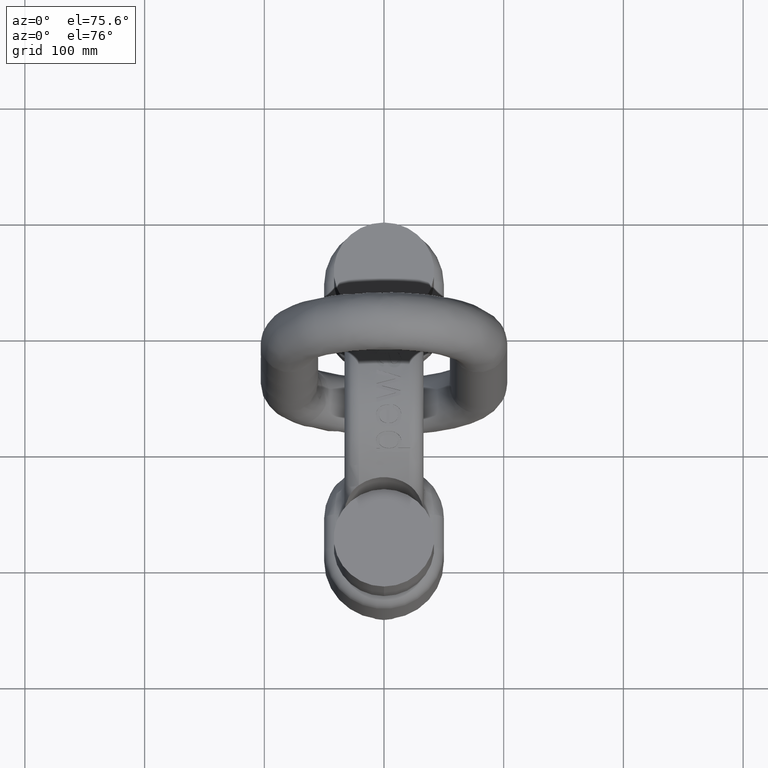
[diagram: clean part render]
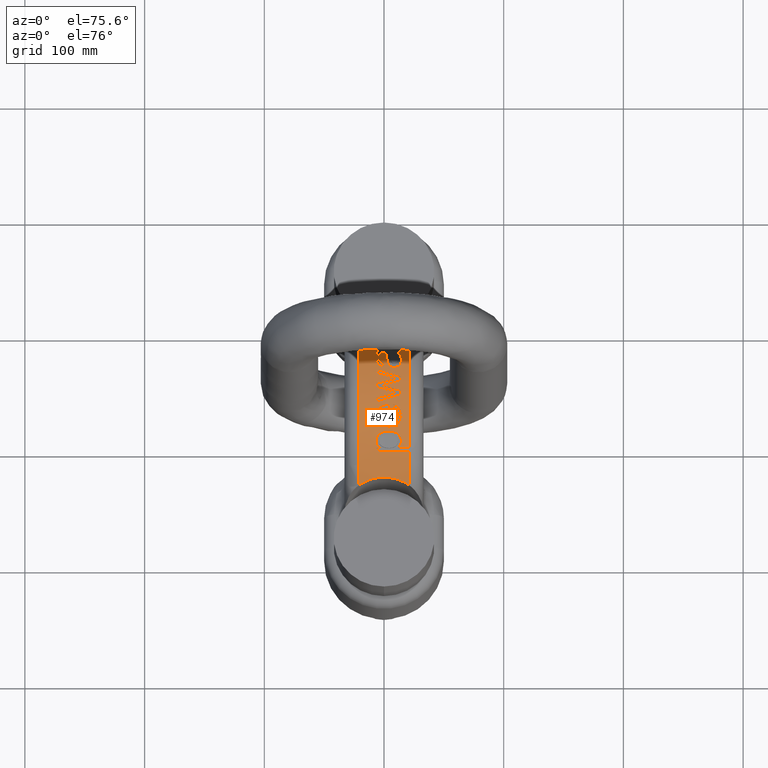
[diagram: same view with one face highlighted and labeled with its STEP entity id]
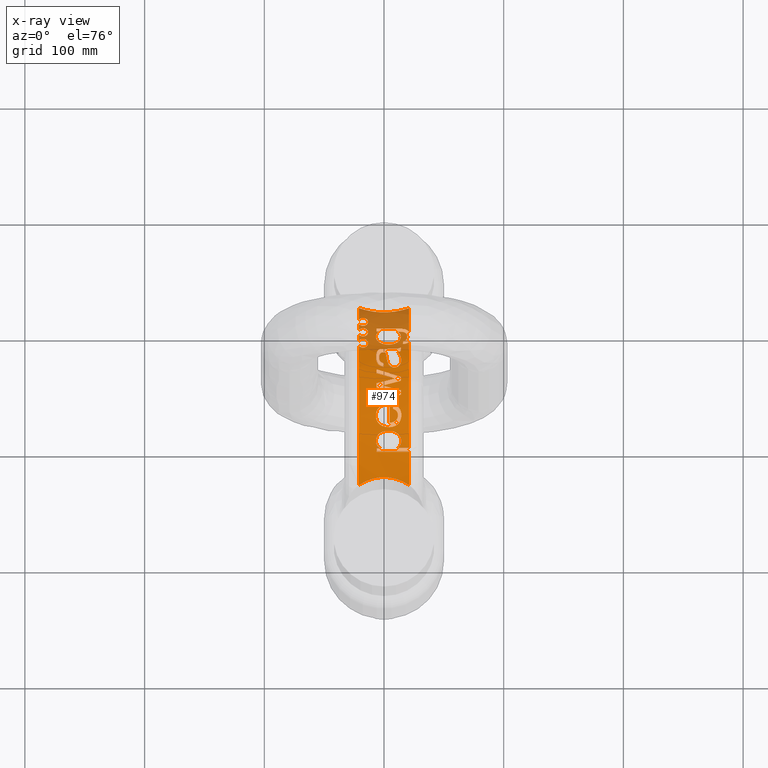
[diagram: x-ray of the same camera — body ghosted, the highlighted face saturated]
A machine part, auxiliary view. The second image highlights one B-rep face of the part: STEP entity #974.
The next image is the same camera in x-ray: the body ghosted, the highlighted face saturated — about 21% of this face is hidden behind the body in this view.
In plain terms, the highlighted cylindrical surface (partial cylindrical patch) has radius 96 mm, axis along (-1, 0, 0).
Its self-contained STEP definition (entity closure, byte-faithful):
#974=ADVANCED_FACE('',(#1175,#1176,#1177,#1178),#1141,.T.);
#1141=CYLINDRICAL_SURFACE('',#3538,96.);
#1175=FACE_BOUND('',#1225,.T.);
#1176=FACE_BOUND('',#1226,.T.);
#1177=FACE_BOUND('',#1227,.T.);
#1178=FACE_BOUND('',#1228,.T.);
#1225=EDGE_LOOP('',(#1947,#1948,#1949,#1950,#1951,#1952,#1953,#1954,#1955,
#1956,#1957,#1958,#1959,#1960,#1961,#1962,#1963,#1964,#1965,#1966,#1967));
#1226=EDGE_LOOP('',(#1968,#1969,#1970,#1971,#1972,#1973,#1974,#1975,#1976,
#1977,#1978,#1979,#1980,#1981,#1982,#1983,#1984));
#1227=EDGE_LOOP('',(#1985,#1986,#1987,#1988,#1989,#1990,#1991,#1992,#1993));
#1228=EDGE_LOOP('',(#1994,#1995,#1996,#1997,#1998,#1999,#2000,#2001,#2002,
#2003,#2004,#2005,#2006,#2007,#2008,#2009,#2010,#2011,#2012,#2013,#2014,
#2015,#2016,#2017,#2018,#2019,#2020,#2021,#2022,#2023,#2024,#2025,#2026));
#1418=B_SPLINE_CURVE_WITH_KNOTS('',3,(#4279,#4280,#4281,#4282,#4283,#4284,
#4285,#4286,#4287,#4288,#4289,#4290,#4291,#4292,#4293,#4294,#4295,#4296,
#4297,#4298,#4299,#4300,#4301,#4302,#4303,#4304,#4305,#4306,#4307,#4308,
#4309,#4310,#4311,#4312,#4313,#4314,#4315,#4316,#4317,#4318,#4319,#4320,
#4321,#4322,#4323,#4324,#4325,#4326,#4327,#4328,#4329,#4330,#4331,#4332,
#4333,#4334,#4335,#4336,#4337,#4338,#4339,#4340,#4341,#4342),
 .UNSPECIFIED.,.F.,.F.,(4,3,3,3,3,3,3,3,3,3,3,3,3,3,3,3,3,3,3,3,3,4),(0.,
0.49955328851525,0.749371434741825,0.834029603282392,0.889946039312453,
0.926899860751098,0.951339384236132,0.967517535161966,0.978239931005464,
0.985357874383704,0.990093298872511,0.993252983556462,0.995369787194922,
0.996795771266552,0.997763606356575,0.998427267015946,0.998888978609968,
0.999371388738576,0.999590041664046,0.999773234990563,0.999908557810776,
1.),.UNSPECIFIED.);
#1419=B_SPLINE_CURVE_WITH_KNOTS('',3,(#4344,#4345,#4346,#4347,#4348,#4349,
#4350,#4351,#4352,#4353),.UNSPECIFIED.,.F.,.F.,(4,3,3,4),(0.,0.133710790940083,
0.662259457839558,1.),.UNSPECIFIED.);
#1420=B_SPLINE_CURVE_WITH_KNOTS('',3,(#4377,#4378,#4379,#4380,#4381,#4382,
#4383,#4384,#4385,#4386),.UNSPECIFIED.,.F.,.F.,(4,3,3,4),(0.,0.284444146730759,
0.642217511375723,1.),.UNSPECIFIED.);
#1421=B_SPLINE_CURVE_WITH_KNOTS('',3,(#4390,#4391,#4392,#4393,#4394,#4395,
#4396,#4397,#4398,#4399),.UNSPECIFIED.,.F.,.F.,(4,3,3,4),(0.,0.297982429070866,
0.59621051939344,1.),.UNSPECIFIED.);
#1422=B_SPLINE_CURVE_WITH_KNOTS('',3,(#4401,#4402,#4403,#4404,#4405,#4406,
#4407,#4408,#4409,#4410,#4411,#4412,#4413,#4414,#4415,#4416),
 .UNSPECIFIED.,.F.,.F.,(4,2,2,2,2,2,2,4),(0.,0.125,0.25,0.375,0.5,0.625,
0.749999999999999,1.),.UNSPECIFIED.);
#1423=B_SPLINE_CURVE_WITH_KNOTS('',3,(#4418,#4419,#4420,#4421,#4422,#4423),
 .UNSPECIFIED.,.F.,.F.,(4,2,4),(0.,0.5,1.),.UNSPECIFIED.);
#1424=B_SPLINE_CURVE_WITH_KNOTS('',3,(#4427,#4428,#4429,#4430,#4431,#4432,
#4433,#4434,#4435,#4436),.UNSPECIFIED.,.F.,.F.,(4,3,3,4),(0.,0.295832067730282,
0.591478766816927,1.),.UNSPECIFIED.);
#1425=B_SPLINE_CURVE_WITH_KNOTS('',3,(#4438,#4439,#4440,#4441,#4442,#4443,
#4444,#4445,#4446,#4447),.UNSPECIFIED.,.F.,.F.,(4,3,3,4),(0.,0.354196956395695,
0.676989152019512,1.),.UNSPECIFIED.);
#1426=B_SPLINE_CURVE_WITH_KNOTS('',3,(#4449,#4450,#4451,#4452,#4453,#4454,
#4455,#4456,#4457,#4458),.UNSPECIFIED.,.F.,.F.,(4,3,3,4),(0.,0.283875189649946,
0.568062773987668,1.),.UNSPECIFIED.);
#1427=B_SPLINE_CURVE_WITH_KNOTS('',3,(#4460,#4461,#4462,#4463,#4464,#4465,
#4466,#4467,#4468,#4469),.UNSPECIFIED.,.F.,.F.,(4,3,3,4),(0.,0.294262907408577,
0.58920161461795,1.),.UNSPECIFIED.);
#1428=B_SPLINE_CURVE_WITH_KNOTS('',3,(#4471,#4472,#4473,#4474,#4475,#4476),
 .UNSPECIFIED.,.F.,.F.,(4,2,4),(0.,0.5,1.),.UNSPECIFIED.);
#1429=B_SPLINE_CURVE_WITH_KNOTS('',3,(#4478,#4479,#4480,#4481),
 .UNSPECIFIED.,.F.,.F.,(4,4),(0.,1.),.UNSPECIFIED.);
#1430=B_SPLINE_CURVE_WITH_KNOTS('',3,(#4485,#4486,#4487,#4488),
 .UNSPECIFIED.,.F.,.F.,(4,4),(0.,1.),.UNSPECIFIED.);
#1431=B_SPLINE_CURVE_WITH_KNOTS('',3,(#4490,#4491,#4492,#4493,#4494,#4495,
#4496,#4497),.UNSPECIFIED.,.F.,.F.,(4,2,2,4),(0.,0.25,0.500000000000001,
1.),.UNSPECIFIED.);
#1432=B_SPLINE_CURVE_WITH_KNOTS('',3,(#4499,#4500,#4501,#4502,#4503,#4504,
#4505,#4506,#4507,#4508),.UNSPECIFIED.,.F.,.F.,(4,3,3,4),(0.,0.261924304348982,
0.65301878983546,1.),.UNSPECIFIED.);
#1433=B_SPLINE_CURVE_WITH_KNOTS('',3,(#4510,#4511,#4512,#4513,#4514,#4515,
#4516,#4517,#4518,#4519),.UNSPECIFIED.,.F.,.F.,(4,2,2,2,4),(0.,0.25,0.5,
0.75,1.),.UNSPECIFIED.);
#1434=B_SPLINE_CURVE_WITH_KNOTS('',3,(#4521,#4522,#4523,#4524,#4525,#4526,
#4527,#4528,#4529,#4530),.UNSPECIFIED.,.F.,.F.,(4,3,3,4),(0.,0.264424805711655,
0.528979257554789,1.),.UNSPECIFIED.);
#1435=B_SPLINE_CURVE_WITH_KNOTS('',3,(#4534,#4535,#4536,#4537),
 .UNSPECIFIED.,.F.,.F.,(4,4),(0.,1.),.UNSPECIFIED.);
#1436=B_SPLINE_CURVE_WITH_KNOTS('',3,(#4539,#4540,#4541,#4542,#4543,#4544),
 .UNSPECIFIED.,.F.,.F.,(4,2,4),(0.,0.5,1.),.UNSPECIFIED.);
#1437=B_SPLINE_CURVE_WITH_KNOTS('',3,(#4546,#4547,#4548,#4549,#4550,#4551,
#4552,#4553,#4554,#4555),.UNSPECIFIED.,.F.,.F.,(4,3,3,4),(0.,0.291869155071851,
0.58440440214074,1.),.UNSPECIFIED.);
#1438=B_SPLINE_CURVE_WITH_KNOTS('',3,(#4559,#4560,#4561,#4562),
 .UNSPECIFIED.,.F.,.F.,(4,4),(0.,1.),.UNSPECIFIED.);
#1439=B_SPLINE_CURVE_WITH_KNOTS('',3,(#4564,#4565,#4566,#4567,#4568,#4569),
 .UNSPECIFIED.,.F.,.F.,(4,2,4),(0.,0.5,1.),.UNSPECIFIED.);
#1440=B_SPLINE_CURVE_WITH_KNOTS('',3,(#4571,#4572,#4573,#4574,#4575,#4576,
#4577,#4578,#4579,#4580,#4581,#4582,#4583,#4584,#4585,#4586,#4587,#4588),
 .UNSPECIFIED.,.F.,.F.,(4,2,2,2,2,2,2,2,4),(0.,0.125,0.25,0.375,0.5,0.625,
0.75,0.875,1.),.UNSPECIFIED.);
#1441=B_SPLINE_CURVE_WITH_KNOTS('',3,(#4590,#4591,#4592,#4593,#4594,#4595),
 .UNSPECIFIED.,.F.,.F.,(4,2,4),(0.,0.5,1.),.UNSPECIFIED.);
#1442=B_SPLINE_CURVE_WITH_KNOTS('',3,(#4605,#4606,#4607,#4608,#4609,#4610),
 .UNSPECIFIED.,.F.,.F.,(4,2,4),(0.,0.5,1.),.UNSPECIFIED.);
#1443=B_SPLINE_CURVE_WITH_KNOTS('',3,(#4612,#4613,#4614,#4615,#4616,#4617),
 .UNSPECIFIED.,.F.,.F.,(4,2,4),(0.,0.5,1.),.UNSPECIFIED.);
#1444=B_SPLINE_CURVE_WITH_KNOTS('',3,(#4619,#4620,#4621,#4622,#4623,#4624,
#4625,#4626,#4627,#4628,#4629,#4630),.UNSPECIFIED.,.F.,.F.,(4,2,2,2,2,4),
(0.,0.125,0.25,0.5,0.75,1.),.UNSPECIFIED.);
#1445=B_SPLINE_CURVE_WITH_KNOTS('',3,(#4638,#4639,#4640,#4641),
 .UNSPECIFIED.,.F.,.F.,(4,4),(0.,1.),.UNSPECIFIED.);
#1446=B_SPLINE_CURVE_WITH_KNOTS('',3,(#4643,#4644,#4645,#4646,#4647,#4648),
 .UNSPECIFIED.,.F.,.F.,(4,2,4),(0.,0.5,1.),.UNSPECIFIED.);
#1447=B_SPLINE_CURVE_WITH_KNOTS('',3,(#4652,#4653,#4654,#4655,#4656,#4657,
#4658,#4659,#4660,#4661),.UNSPECIFIED.,.F.,.F.,(4,3,3,4),(0.,0.263976760139293,
0.62374053692487,1.),.UNSPECIFIED.);
#1448=B_SPLINE_CURVE_WITH_KNOTS('',3,(#4663,#4664,#4665,#4666,#4667,#4668),
 .UNSPECIFIED.,.F.,.F.,(4,2,4),(0.,0.5,1.),.UNSPECIFIED.);
#1449=B_SPLINE_CURVE_WITH_KNOTS('',3,(#4670,#4671,#4672,#4673,#4674,#4675,
#4676,#4677),.UNSPECIFIED.,.F.,.F.,(4,2,2,4),(0.,0.5,0.75,1.),
 .UNSPECIFIED.);
#1450=B_SPLINE_CURVE_WITH_KNOTS('',3,(#4679,#4680,#4681,#4682,#4683,#4684,
#4685,#4686,#4687,#4688,#4689,#4690,#4691,#4692,#4693,#4694,#4695,#4696),
 .UNSPECIFIED.,.F.,.F.,(4,2,2,2,2,2,2,2,4),(0.,0.125,0.25,0.375,0.5,0.625,
0.75,0.875,1.),.UNSPECIFIED.);
#1451=B_SPLINE_CURVE_WITH_KNOTS('',3,(#4704,#4705,#4706,#4707,#4708,#4709,
#4710,#4711,#4712,#4713),.UNSPECIFIED.,.F.,.F.,(4,2,2,2,4),(0.,0.125,0.25,
0.5,1.),.UNSPECIFIED.);
#1452=B_SPLINE_CURVE_WITH_KNOTS('',3,(#4715,#4716,#4717,#4718),
 .UNSPECIFIED.,.F.,.F.,(4,4),(0.,1.),.UNSPECIFIED.);
#1453=B_SPLINE_CURVE_WITH_KNOTS('',3,(#4722,#4723,#4724,#4725,#4726,#4727,
#4728,#4729,#4730,#4731),.UNSPECIFIED.,.F.,.F.,(4,2,2,2,4),(0.,0.25,0.5,
0.75,1.),.UNSPECIFIED.);
#1454=B_SPLINE_CURVE_WITH_KNOTS('',3,(#4735,#4736,#4737,#4738,#4739,#4740,
#4741,#4742,#4743,#4744,#4745,#4746,#4747,#4748,#4749,#4750,#4751,#4752),
 .UNSPECIFIED.,.F.,.F.,(4,2,2,2,2,2,2,2,4),(0.,0.125,0.25,0.374999999999999,
0.499999999999999,0.625,0.75,0.875,1.),.UNSPECIFIED.);
#1455=B_SPLINE_CURVE_WITH_KNOTS('',3,(#4756,#4757,#4758,#4759,#4760,#4761,
#4762,#4763,#4764,#4765,#4766,#4767,#4768,#4769,#4770,#4771,#4772,#4773),
 .UNSPECIFIED.,.F.,.F.,(4,2,2,2,2,2,2,2,4),(0.,0.125,0.250000000000001,
0.375,0.5,0.625,0.75,0.875,1.),.UNSPECIFIED.);
#1456=B_SPLINE_CURVE_WITH_KNOTS('',3,(#4777,#4778,#4779,#4780,#4781,#4782,
#4783,#4784,#4785,#4786,#4787,#4788,#4789,#4790,#4791,#4792),
 .UNSPECIFIED.,.F.,.F.,(4,2,2,2,2,2,2,4),(0.,0.125,0.25,0.499999999999999,
0.624999999999999,0.75,0.875,1.),.UNSPECIFIED.);
#1457=B_SPLINE_CURVE_WITH_KNOTS('',3,(#4796,#4797,#4798,#4799,#4800,#4801,
#4802,#4803,#4804,#4805),.UNSPECIFIED.,.F.,.F.,(4,2,2,2,4),(0.,0.25,0.5,
0.75,1.),.UNSPECIFIED.);
#1645=LINE('',#4271,#1763);
#1646=LINE('',#4363,#1764);
#1647=LINE('',#4596,#1765);
#1648=LINE('',#4601,#1766);
#1649=LINE('',#4634,#1767);
#1650=LINE('',#4700,#1768);
#1763=VECTOR('',#3710,1.);
#1764=VECTOR('',#3725,1.);
#1765=VECTOR('',#3748,1.);
#1766=VECTOR('',#3751,1.);
#1767=VECTOR('',#3756,1.);
#1768=VECTOR('',#3763,1.);
#1926=ELLIPSE('',#3505,334.165772976674,96.);
#1927=ELLIPSE('',#3507,315.534645239826,96.);
#1928=ELLIPSE('',#3509,370.462693074471,96.);
#1929=ELLIPSE('',#3511,377.406551133111,96.);
#1930=ELLIPSE('',#3513,321.801172778233,96.);
#1931=ELLIPSE('',#3515,356.263238718433,96.);
#1932=ELLIPSE('',#3516,387.50784241534,96.);
#1933=ELLIPSE('',#3517,360.821529230002,96.);
#1934=ELLIPSE('',#3519,379.34151670595,96.);
#1935=ELLIPSE('',#3521,97.1065626048903,96.);
#1936=ELLIPSE('',#3522,96.8381091184336,96.);
#1937=ELLIPSE('',#3524,96.7593361660308,96.);
#1938=ELLIPSE('',#3529,97.4187111960013,96.);
#1947=ORIENTED_EDGE('',*,*,#3020,.F.);
#1948=ORIENTED_EDGE('',*,*,#3021,.F.);
#1949=ORIENTED_EDGE('',*,*,#3022,.F.);
#1950=ORIENTED_EDGE('',*,*,#3023,.T.);
#1951=ORIENTED_EDGE('',*,*,#3024,.F.);
#1952=ORIENTED_EDGE('',*,*,#3025,.F.);
#1953=ORIENTED_EDGE('',*,*,#3026,.F.);
#1954=ORIENTED_EDGE('',*,*,#3027,.F.);
#1955=ORIENTED_EDGE('',*,*,#3028,.F.);
#1956=ORIENTED_EDGE('',*,*,#3029,.F.);
#1957=ORIENTED_EDGE('',*,*,#3030,.F.);
#1958=ORIENTED_EDGE('',*,*,#3031,.F.);
#1959=ORIENTED_EDGE('',*,*,#3032,.F.);
#1960=ORIENTED_EDGE('',*,*,#3033,.T.);
#1961=ORIENTED_EDGE('',*,*,#3034,.F.);
#1962=ORIENTED_EDGE('',*,*,#3035,.F.);
#1963=ORIENTED_EDGE('',*,*,#3036,.F.);
#1964=ORIENTED_EDGE('',*,*,#3037,.F.);
#1965=ORIENTED_EDGE('',*,*,#3038,.F.);
#1966=ORIENTED_EDGE('',*,*,#3039,.F.);
#1967=ORIENTED_EDGE('',*,*,#3040,.F.);
#1968=ORIENTED_EDGE('',*,*,#3041,.F.);
#1969=ORIENTED_EDGE('',*,*,#3042,.F.);
#1970=ORIENTED_EDGE('',*,*,#3043,.F.);
#1971=ORIENTED_EDGE('',*,*,#3044,.F.);
#1972=ORIENTED_EDGE('',*,*,#3045,.F.);
#1973=ORIENTED_EDGE('',*,*,#3046,.F.);
#1974=ORIENTED_EDGE('',*,*,#3047,.F.);
#1975=ORIENTED_EDGE('',*,*,#3048,.F.);
#1976=ORIENTED_EDGE('',*,*,#3049,.F.);
#1977=ORIENTED_EDGE('',*,*,#3050,.F.);
#1978=ORIENTED_EDGE('',*,*,#3051,.F.);
#1979=ORIENTED_EDGE('',*,*,#3052,.F.);
#1980=ORIENTED_EDGE('',*,*,#3053,.F.);
#1981=ORIENTED_EDGE('',*,*,#3054,.F.);
#1982=ORIENTED_EDGE('',*,*,#3055,.F.);
#1983=ORIENTED_EDGE('',*,*,#3056,.F.);
#1984=ORIENTED_EDGE('',*,*,#3057,.F.);
#1985=ORIENTED_EDGE('',*,*,#3058,.F.);
#1986=ORIENTED_EDGE('',*,*,#3059,.F.);
#1987=ORIENTED_EDGE('',*,*,#3060,.F.);
#1988=ORIENTED_EDGE('',*,*,#3061,.F.);
#1989=ORIENTED_EDGE('',*,*,#3062,.F.);
#1990=ORIENTED_EDGE('',*,*,#3063,.F.);
#1991=ORIENTED_EDGE('',*,*,#3064,.F.);
#1992=ORIENTED_EDGE('',*,*,#3065,.F.);
#1993=ORIENTED_EDGE('',*,*,#3066,.F.);
#1994=ORIENTED_EDGE('',*,*,#3067,.F.);
#1995=ORIENTED_EDGE('',*,*,#3068,.F.);
#1996=ORIENTED_EDGE('',*,*,#3069,.F.);
#1997=ORIENTED_EDGE('',*,*,#3070,.F.);
#1998=ORIENTED_EDGE('',*,*,#3071,.F.);
#1999=ORIENTED_EDGE('',*,*,#3072,.F.);
#2000=ORIENTED_EDGE('',*,*,#3073,.F.);
#2001=ORIENTED_EDGE('',*,*,#3074,.F.);
#2002=ORIENTED_EDGE('',*,*,#3075,.F.);
#2003=ORIENTED_EDGE('',*,*,#3076,.T.);
#2004=ORIENTED_EDGE('',*,*,#3077,.F.);
#2005=ORIENTED_EDGE('',*,*,#3078,.F.);
#2006=ORIENTED_EDGE('',*,*,#3079,.F.);
#2007=ORIENTED_EDGE('',*,*,#3080,.F.);
#2008=ORIENTED_EDGE('',*,*,#3081,.F.);
#2009=ORIENTED_EDGE('',*,*,#3082,.F.);
#2010=ORIENTED_EDGE('',*,*,#3083,.F.);
#2011=ORIENTED_EDGE('',*,*,#3084,.F.);
#2012=ORIENTED_EDGE('',*,*,#3085,.F.);
#2013=ORIENTED_EDGE('',*,*,#3086,.F.);
#2014=ORIENTED_EDGE('',*,*,#3087,.F.);
#2015=ORIENTED_EDGE('',*,*,#3088,.F.);
#2016=ORIENTED_EDGE('',*,*,#3089,.T.);
#2017=ORIENTED_EDGE('',*,*,#3090,.F.);
#2018=ORIENTED_EDGE('',*,*,#3091,.T.);
#2019=ORIENTED_EDGE('',*,*,#3092,.T.);
#2020=ORIENTED_EDGE('',*,*,#3093,.T.);
#2021=ORIENTED_EDGE('',*,*,#3094,.T.);
#2022=ORIENTED_EDGE('',*,*,#3095,.T.);
#2023=ORIENTED_EDGE('',*,*,#3096,.T.);
#2024=ORIENTED_EDGE('',*,*,#3097,.T.);
#2025=ORIENTED_EDGE('',*,*,#3098,.T.);
#2026=ORIENTED_EDGE('',*,*,#3099,.T.);
#2755=VERTEX_POINT('',#4265);
#2756=VERTEX_POINT('',#4266);
#2757=VERTEX_POINT('',#4268);
#2758=VERTEX_POINT('',#4270);
#2759=VERTEX_POINT('',#4272);
#2760=VERTEX_POINT('',#4274);
#2761=VERTEX_POINT('',#4276);
#2762=VERTEX_POINT('',#4278);
#2763=VERTEX_POINT('',#4343);
#2764=VERTEX_POINT('',#4354);
#2765=VERTEX_POINT('',#4356);
#2766=VERTEX_POINT('',#4358);
#2767=VERTEX_POINT('',#4360);
#2768=VERTEX_POINT('',#4362);
#2769=VERTEX_POINT('',#4364);
#2770=VERTEX_POINT('',#4366);
#2771=VERTEX_POINT('',#4368);
#2772=VERTEX_POINT('',#4370);
#2773=VERTEX_POINT('',#4372);
#2774=VERTEX_POINT('',#4374);
#2775=VERTEX_POINT('',#4376);
#2776=VERTEX_POINT('',#4388);
#2777=VERTEX_POINT('',#4389);
#2778=VERTEX_POINT('',#4400);
#2779=VERTEX_POINT('',#4417);
#2780=VERTEX_POINT('',#4424);
#2781=VERTEX_POINT('',#4426);
#2782=VERTEX_POINT('',#4437);
#2783=VERTEX_POINT('',#4448);
#2784=VERTEX_POINT('',#4459);
#2785=VERTEX_POINT('',#4470);
#2786=VERTEX_POINT('',#4477);
#2787=VERTEX_POINT('',#4482);
#2788=VERTEX_POINT('',#4484);
#2789=VERTEX_POINT('',#4489);
#2790=VERTEX_POINT('',#4498);
#2791=VERTEX_POINT('',#4509);
#2792=VERTEX_POINT('',#4520);
#2793=VERTEX_POINT('',#4532);
#2794=VERTEX_POINT('',#4533);
#2795=VERTEX_POINT('',#4538);
#2796=VERTEX_POINT('',#4545);
#2797=VERTEX_POINT('',#4556);
#2798=VERTEX_POINT('',#4558);
#2799=VERTEX_POINT('',#4563);
#2800=VERTEX_POINT('',#4570);
#2801=VERTEX_POINT('',#4589);
#2802=VERTEX_POINT('',#4597);
#2803=VERTEX_POINT('',#4598);
#2804=VERTEX_POINT('',#4600);
#2805=VERTEX_POINT('',#4602);
#2806=VERTEX_POINT('',#4604);
#2807=VERTEX_POINT('',#4611);
#2808=VERTEX_POINT('',#4618);
#2809=VERTEX_POINT('',#4631);
#2810=VERTEX_POINT('',#4633);
#2811=VERTEX_POINT('',#4635);
#2812=VERTEX_POINT('',#4637);
#2813=VERTEX_POINT('',#4642);
#2814=VERTEX_POINT('',#4649);
#2815=VERTEX_POINT('',#4651);
#2816=VERTEX_POINT('',#4662);
#2817=VERTEX_POINT('',#4669);
#2818=VERTEX_POINT('',#4678);
#2819=VERTEX_POINT('',#4697);
#2820=VERTEX_POINT('',#4699);
#2821=VERTEX_POINT('',#4701);
#2822=VERTEX_POINT('',#4703);
#2823=VERTEX_POINT('',#4714);
#2824=VERTEX_POINT('',#4719);
#2825=VERTEX_POINT('',#4721);
#2826=VERTEX_POINT('',#4732);
#2827=VERTEX_POINT('',#4734);
#2828=VERTEX_POINT('',#4753);
#2829=VERTEX_POINT('',#4755);
#2830=VERTEX_POINT('',#4774);
#2831=VERTEX_POINT('',#4776);
#2832=VERTEX_POINT('',#4793);
#2833=VERTEX_POINT('',#4795);
#2834=VERTEX_POINT('',#4806);
#3020=EDGE_CURVE('',#2755,#2756,#3424,.T.);
#3021=EDGE_CURVE('',#2757,#2755,#1926,.T.);
#3022=EDGE_CURVE('',#2758,#2757,#3425,.T.);
#3023=EDGE_CURVE('',#2758,#2759,#1645,.T.);
#3024=EDGE_CURVE('',#2760,#2759,#1927,.T.);
#3025=EDGE_CURVE('',#2761,#2760,#3426,.T.);
#3026=EDGE_CURVE('',#2762,#2761,#1928,.T.);
#3027=EDGE_CURVE('',#2763,#2762,#1418,.T.);
#3028=EDGE_CURVE('',#2764,#2763,#1419,.T.);
#3029=EDGE_CURVE('',#2765,#2764,#3427,.T.);
#3030=EDGE_CURVE('',#2766,#2765,#1929,.T.);
#3031=EDGE_CURVE('',#2767,#2766,#3428,.T.);
#3032=EDGE_CURVE('',#2768,#2767,#1930,.T.);
#3033=EDGE_CURVE('',#2768,#2769,#1646,.T.);
#3034=EDGE_CURVE('',#2770,#2769,#3429,.T.);
#3035=EDGE_CURVE('',#2771,#2770,#1931,.T.);
#3036=EDGE_CURVE('',#2772,#2771,#1932,.T.);
#3037=EDGE_CURVE('',#2773,#2772,#1933,.T.);
#3038=EDGE_CURVE('',#2774,#2773,#3430,.T.);
#3039=EDGE_CURVE('',#2775,#2774,#1934,.T.);
#3040=EDGE_CURVE('',#2756,#2775,#1420,.T.);
#3041=EDGE_CURVE('',#2776,#2777,#3431,.T.);
#3042=EDGE_CURVE('',#2778,#2776,#1421,.T.);
#3043=EDGE_CURVE('',#2779,#2778,#1422,.T.);
#3044=EDGE_CURVE('',#2780,#2779,#1423,.T.);
#3045=EDGE_CURVE('',#2781,#2780,#1935,.T.);
#3046=EDGE_CURVE('',#2782,#2781,#1424,.T.);
#3047=EDGE_CURVE('',#2783,#2782,#1425,.T.);
#3048=EDGE_CURVE('',#2784,#2783,#1426,.T.);
#3049=EDGE_CURVE('',#2785,#2784,#1427,.T.);
#3050=EDGE_CURVE('',#2786,#2785,#1428,.T.);
#3051=EDGE_CURVE('',#2787,#2786,#1429,.T.);
#3052=EDGE_CURVE('',#2788,#2787,#1936,.T.);
#3053=EDGE_CURVE('',#2789,#2788,#1430,.T.);
#3054=EDGE_CURVE('',#2790,#2789,#1431,.T.);
#3055=EDGE_CURVE('',#2791,#2790,#1432,.T.);
#3056=EDGE_CURVE('',#2792,#2791,#1433,.T.);
#3057=EDGE_CURVE('',#2777,#2792,#1434,.T.);
#3058=EDGE_CURVE('',#2793,#2794,#3432,.T.);
#3059=EDGE_CURVE('',#2795,#2793,#1435,.T.);
#3060=EDGE_CURVE('',#2796,#2795,#1436,.T.);
#3061=EDGE_CURVE('',#2797,#2796,#1437,.T.);
#3062=EDGE_CURVE('',#2798,#2797,#1937,.T.);
#3063=EDGE_CURVE('',#2799,#2798,#1438,.T.);
#3064=EDGE_CURVE('',#2800,#2799,#1439,.T.);
#3065=EDGE_CURVE('',#2801,#2800,#1440,.T.);
#3066=EDGE_CURVE('',#2794,#2801,#1441,.T.);
#3067=EDGE_CURVE('',#2802,#2803,#1647,.T.);
#3068=EDGE_CURVE('',#2804,#2802,#3433,.T.);
#3069=EDGE_CURVE('',#2805,#2804,#1648,.T.);
#3070=EDGE_CURVE('',#2806,#2805,#3434,.T.);
#3071=EDGE_CURVE('',#2807,#2806,#1442,.T.);
#3072=EDGE_CURVE('',#2808,#2807,#1443,.T.);
#3073=EDGE_CURVE('',#2809,#2808,#1444,.T.);
#3074=EDGE_CURVE('',#2810,#2809,#3435,.T.);
#3075=EDGE_CURVE('',#2811,#2810,#1649,.T.);
#3076=EDGE_CURVE('',#2811,#2812,#3436,.T.);
#3077=EDGE_CURVE('',#2813,#2812,#1445,.T.);
#3078=EDGE_CURVE('',#2814,#2813,#1446,.T.);
#3079=EDGE_CURVE('',#2815,#2814,#1938,.T.);
#3080=EDGE_CURVE('',#2816,#2815,#1447,.T.);
#3081=EDGE_CURVE('',#2817,#2816,#1448,.T.);
#3082=EDGE_CURVE('',#2818,#2817,#1449,.T.);
#3083=EDGE_CURVE('',#2819,#2818,#1450,.T.);
#3084=EDGE_CURVE('',#2820,#2819,#3437,.T.);
#3085=EDGE_CURVE('',#2821,#2820,#1650,.T.);
#3086=EDGE_CURVE('',#2822,#2821,#3438,.T.);
#3087=EDGE_CURVE('',#2823,#2822,#1451,.T.);
#3088=EDGE_CURVE('',#2824,#2823,#1452,.T.);
#3089=EDGE_CURVE('',#2824,#2825,#3439,.T.);
#3090=EDGE_CURVE('',#2826,#2825,#1453,.T.);
#3091=EDGE_CURVE('',#2826,#2827,#3440,.T.);
#3092=EDGE_CURVE('',#2827,#2828,#1454,.T.);
#3093=EDGE_CURVE('',#2828,#2829,#3441,.T.);
#3094=EDGE_CURVE('',#2829,#2830,#1455,.T.);
#3095=EDGE_CURVE('',#2830,#2831,#3442,.T.);
#3096=EDGE_CURVE('',#2831,#2832,#1456,.T.);
#3097=EDGE_CURVE('',#2832,#2833,#3443,.T.);
#3098=EDGE_CURVE('',#2833,#2834,#1457,.T.);
#3099=EDGE_CURVE('',#2834,#2803,#3444,.T.);
#3424=CIRCLE('',#3504,96.);
#3425=CIRCLE('',#3506,96.);
#3426=CIRCLE('',#3508,96.);
#3427=CIRCLE('',#3510,96.);
#3428=CIRCLE('',#3512,96.);
#3429=CIRCLE('',#3514,96.);
#3430=CIRCLE('',#3518,96.);
#3431=CIRCLE('',#3520,96.);
#3432=CIRCLE('',#3523,96.);
#3433=CIRCLE('',#3525,96.);
#3434=CIRCLE('',#3526,96.);
#3435=CIRCLE('',#3527,96.);
#3436=CIRCLE('',#3528,96.);
#3437=CIRCLE('',#3530,96.);
#3438=CIRCLE('',#3531,96.);
#3439=CIRCLE('',#3532,96.);
#3440=CIRCLE('',#3533,96.);
#3441=CIRCLE('',#3534,96.);
#3442=CIRCLE('',#3535,96.);
#3443=CIRCLE('',#3536,96.);
#3444=CIRCLE('',#3537,96.);
#3504=AXIS2_PLACEMENT_3D('',#4264,#3704,#3705);
#3505=AXIS2_PLACEMENT_3D('',#4267,#3706,#3707);
#3506=AXIS2_PLACEMENT_3D('',#4269,#3708,#3709);
#3507=AXIS2_PLACEMENT_3D('',#4273,#3711,#3712);
#3508=AXIS2_PLACEMENT_3D('',#4275,#3713,#3714);
#3509=AXIS2_PLACEMENT_3D('',#4277,#3715,#3716);
#3510=AXIS2_PLACEMENT_3D('',#4355,#3717,#3718);
#3511=AXIS2_PLACEMENT_3D('',#4357,#3719,#3720);
#3512=AXIS2_PLACEMENT_3D('',#4359,#3721,#3722);
#3513=AXIS2_PLACEMENT_3D('',#4361,#3723,#3724);
#3514=AXIS2_PLACEMENT_3D('',#4365,#3726,#3727);
#3515=AXIS2_PLACEMENT_3D('',#4367,#3728,#3729);
#3516=AXIS2_PLACEMENT_3D('',#4369,#3730,#3731);
#3517=AXIS2_PLACEMENT_3D('',#4371,#3732,#3733);
#3518=AXIS2_PLACEMENT_3D('',#4373,#3734,#3735);
#3519=AXIS2_PLACEMENT_3D('',#4375,#3736,#3737);
#3520=AXIS2_PLACEMENT_3D('',#4387,#3738,#3739);
#3521=AXIS2_PLACEMENT_3D('',#4425,#3740,#3741);
#3522=AXIS2_PLACEMENT_3D('',#4483,#3742,#3743);
#3523=AXIS2_PLACEMENT_3D('',#4531,#3744,#3745);
#3524=AXIS2_PLACEMENT_3D('',#4557,#3746,#3747);
#3525=AXIS2_PLACEMENT_3D('',#4599,#3749,#3750);
#3526=AXIS2_PLACEMENT_3D('',#4603,#3752,#3753);
#3527=AXIS2_PLACEMENT_3D('',#4632,#3754,#3755);
#3528=AXIS2_PLACEMENT_3D('',#4636,#3757,#3758);
#3529=AXIS2_PLACEMENT_3D('',#4650,#3759,#3760);
#3530=AXIS2_PLACEMENT_3D('',#4698,#3761,#3762);
#3531=AXIS2_PLACEMENT_3D('',#4702,#3764,#3765);
#3532=AXIS2_PLACEMENT_3D('',#4720,#3766,#3767);
#3533=AXIS2_PLACEMENT_3D('',#4733,#3768,#3769);
#3534=AXIS2_PLACEMENT_3D('',#4754,#3770,#3771);
#3535=AXIS2_PLACEMENT_3D('',#4775,#3772,#3773);
#3536=AXIS2_PLACEMENT_3D('',#4794,#3774,#3775);
#3537=AXIS2_PLACEMENT_3D('',#4807,#3776,#3777);
#3538=AXIS2_PLACEMENT_3D('',#4808,#3778,#3779);
#3704=DIRECTION('',(1.,0.,0.));
#3705=DIRECTION('',(0.,0.,-1.));
#3706=DIRECTION('',(0.287282563815119,0.957845879318699,0.));
#3707=DIRECTION('',(-0.957845879318699,0.287282563815119,0.));
#3708=DIRECTION('',(1.,0.,0.));
#3709=DIRECTION('',(0.,0.,-1.));
#3710=DIRECTION('',(1.,0.,0.));
#3711=DIRECTION('',(-0.304245512967472,-0.952593653054208,0.));
#3712=DIRECTION('',(-0.952593653054208,0.304245512967472,0.));
#3713=DIRECTION('',(-1.,0.,0.));
#3714=DIRECTION('',(0.,0.,1.));
#3715=DIRECTION('',(-0.259135404980447,0.965841002383736,0.));
#3716=DIRECTION('',(-0.965841002383736,-0.259135404980447,0.));
#3717=DIRECTION('',(-1.,0.,0.));
#3718=DIRECTION('',(0.,0.,1.));
#3719=DIRECTION('',(-0.254367603614122,-0.967107606335308,0.));
#3720=DIRECTION('',(-0.967107606335308,0.254367603614122,0.));
#3721=DIRECTION('',(-1.,0.,0.));
#3722=DIRECTION('',(0.,0.,1.));
#3723=DIRECTION('',(-0.298320851882531,0.95446564596746,0.));
#3724=DIRECTION('',(-0.95446564596746,-0.298320851882531,0.));
#3725=DIRECTION('',(-1.,0.,0.));
#3726=DIRECTION('',(1.,0.,0.));
#3727=DIRECTION('',(0.,0.,-1.));
#3728=DIRECTION('',(0.26946367058621,-0.963010555619307,0.));
#3729=DIRECTION('',(-0.963010555619307,-0.26946367058621,0.));
#3730=DIRECTION('',(0.247736921662362,0.968827341503767,0.));
#3731=DIRECTION('',(-0.968827341503767,0.247736921662362,0.));
#3732=DIRECTION('',(0.266059512038723,0.963956604860259,0.));
#3733=DIRECTION('',(-0.963956604860259,0.266059512038723,0.));
#3734=DIRECTION('',(1.,0.,0.));
#3735=DIRECTION('',(0.,0.,-1.));
#3736=DIRECTION('',(0.253070111686233,-0.967447941013426,0.));
#3737=DIRECTION('',(-0.967447941013426,-0.253070111686233,0.));
#3738=DIRECTION('',(-1.,0.,0.));
#3739=DIRECTION('',(0.,0.,1.));
#3740=DIRECTION('',(0.98860465683053,0.150535153678433,0.));
#3741=DIRECTION('',(-0.150535153678433,0.98860465683053,0.));
#3742=DIRECTION('',(-0.991345255229957,0.131280558092395,0.));
#3743=DIRECTION('',(-0.131280558092395,-0.991345255229957,0.));
#3744=DIRECTION('',(-1.,0.,0.));
#3745=DIRECTION('',(0.,0.,1.));
#3746=DIRECTION('',(0.992152321459422,-0.125035079168533,0.));
#3747=DIRECTION('',(-0.125035079168533,-0.992152321459421,0.));
#3748=DIRECTION('',(1.,0.,0.));
#3749=DIRECTION('',(1.,-3.09676241042928E-16,0.));
#3750=DIRECTION('',(3.0719061553756E-16,1.,0.));
#3751=DIRECTION('',(-1.,0.,0.));
#3752=DIRECTION('',(1.,0.,0.));
#3753=DIRECTION('',(0.,0.,-1.));
#3754=DIRECTION('',(-1.,0.,0.));
#3755=DIRECTION('',(0.,0.,1.));
#3756=DIRECTION('',(-1.,0.,0.));
#3757=DIRECTION('',(-1.,0.,0.));
#3758=DIRECTION('',(0.,0.,-1.));
#3759=DIRECTION('',(0.985436974287753,-0.170041082408336,0.));
#3760=DIRECTION('',(-0.170041082408336,-0.985436974287753,0.));
#3761=DIRECTION('',(1.,0.,0.));
#3762=DIRECTION('',(0.,0.,-1.));
#3763=DIRECTION('',(1.,0.,0.));
#3764=DIRECTION('',(1.,0.,0.));
#3765=DIRECTION('',(0.,0.,-1.));
#3766=DIRECTION('',(-1.,0.,0.));
#3767=DIRECTION('',(0.,0.,-1.));
#3768=DIRECTION('',(1.,0.,0.));
#3769=DIRECTION('',(0.,0.,1.));
#3770=DIRECTION('',(1.,0.,0.));
#3771=DIRECTION('',(0.,0.,1.));
#3772=DIRECTION('',(1.,0.,0.));
#3773=DIRECTION('',(0.,0.,1.));
#3774=DIRECTION('',(1.,0.,0.));
#3775=DIRECTION('',(0.,0.,1.));
#3776=DIRECTION('',(-1.,0.,0.));
#3777=DIRECTION('',(0.,0.,-1.));
#3778=DIRECTION('',(-1.,0.,0.));
#3779=DIRECTION('',(0.,0.,1.));
#4264=CARTESIAN_POINT('',(9.33691481197237,0.,47.));
#4265=CARTESIAN_POINT('',(9.33691481197237,5.99466263334338,142.812650625648));
#4266=CARTESIAN_POINT('',(9.33691481197237,5.91449085332955,142.817633022038));
#4267=CARTESIAN_POINT('',(29.3240759713562,0.,47.));
#4268=CARTESIAN_POINT('',(-6.26400613967767,10.6737792486959,142.404771560704));
#4269=CARTESIAN_POINT('',(-6.26400613967767,0.,47.));
#4270=CARTESIAN_POINT('',(-6.26400613967767,13.758965044781,142.008898956361));
#4271=CARTESIAN_POINT('',(100.000000000031,13.758965044781,142.008898956342));
#4272=CARTESIAN_POINT('',(-5.22123378226495,13.758965044781,142.008898956342));
#4273=CARTESIAN_POINT('',(37.8581288233369,0.,47.));
#4274=CARTESIAN_POINT('',(14.,7.61996326453281,142.697106329539));
#4275=CARTESIAN_POINT('',(14.,0.,47.));
#4276=CARTESIAN_POINT('',(14.,3.99036813299769,142.917031658424));
#4277=CARTESIAN_POINT('',(-0.872769538170254,0.,47.));
#4278=CARTESIAN_POINT('',(1.83013558454848,0.725190183343619,142.997260894246));
#4279=CARTESIAN_POINT('',(0.18981836786902,0.317042939636858,142.999476476564));
#4280=CARTESIAN_POINT('',(0.464175248891015,0.380902944989532,142.999265575791));
#4281=CARTESIAN_POINT('',(0.738417838756967,0.445267123489285,142.998989876203));
#4282=CARTESIAN_POINT('',(1.01233348337456,0.510993375181869,142.998640020422));
#4283=CARTESIAN_POINT('',(1.1493141732903,0.543861988126539,142.998465063324));
#4284=CARTESIAN_POINT('',(1.28622237874093,0.577043853131877,142.998271766313));
#4285=CARTESIAN_POINT('',(1.42290580301759,0.611127282917137,142.998054789897));
#4286=CARTESIAN_POINT('',(1.46922537451187,0.622677548584414,142.997981260465));
#4287=CARTESIAN_POINT('',(1.51551814674679,0.634337014829211,142.997904962798));
#4288=CARTESIAN_POINT('',(1.5617590602153,0.646198224454378,142.997825120441));
#4289=CARTESIAN_POINT('',(1.5923010335507,0.654032514932748,142.997772384823));
#4290=CARTESIAN_POINT('',(1.62282121573271,0.66195338950776,142.997718113649));
#4291=CARTESIAN_POINT('',(1.65329864108284,0.670035121111856,142.997661705567));
#4292=CARTESIAN_POINT('',(1.67344043872511,0.675376143219164,142.997624426821));
#4293=CARTESIAN_POINT('',(1.69356431418233,0.680786296868405,142.997586223297));
#4294=CARTESIAN_POINT('',(1.71365258193349,0.686325236271092,142.997546623182));
#4295=CARTESIAN_POINT('',(1.72693802227548,0.689988431619933,142.997520433519));
#4296=CARTESIAN_POINT('',(1.74020857556281,0.693707079912629,142.997493639656));
#4297=CARTESIAN_POINT('',(1.75344919859287,0.697529087458542,142.997465868491));
#4298=CARTESIAN_POINT('',(1.76221405227837,0.700059129802377,142.997447484901));
#4299=CARTESIAN_POINT('',(1.77096642497172,0.702633789612262,142.997428678176));
#4300=CARTESIAN_POINT('',(1.77969340995761,0.705291507454558,142.997409151964));
#4301=CARTESIAN_POINT('',(1.78547739688846,0.707052964050459,142.997396210569));
#4302=CARTESIAN_POINT('',(1.7912508227791,0.708850395399075,142.997382956997));
#4303=CARTESIAN_POINT('',(1.79700251240351,0.71071460504782,142.997369155358));
#4304=CARTESIAN_POINT('',(1.80082070892851,0.71195214032311,142.997359993291));
#4305=CARTESIAN_POINT('',(1.80462988139106,0.713218728985157,142.997350592544));
#4306=CARTESIAN_POINT('',(1.80842025858447,0.71453901166729,142.997340765257));
#4307=CARTESIAN_POINT('',(1.81094192112861,0.715417369471098,142.997334227358));
#4308=CARTESIAN_POINT('',(1.81345578967372,0.716319228691937,142.997327502674));
#4309=CARTESIAN_POINT('',(1.81595322872844,0.717264260687313,142.997320441668));
#4310=CARTESIAN_POINT('',(1.81761963087021,0.717894827963085,142.997315730252));
#4311=CARTESIAN_POINT('',(1.81927921864111,0.718544445433198,142.9973108704));
#4312=CARTESIAN_POINT('',(1.82092426779933,0.719228784796201,142.997305743209));
#4313=CARTESIAN_POINT('',(1.82202635383973,0.719687251860901,142.997302308293));
#4314=CARTESIAN_POINT('',(1.82312239598332,0.720161210242761,142.997298754096));
#4315=CARTESIAN_POINT('',(1.82420538703207,0.720663120274311,142.997294986198));
#4316=CARTESIAN_POINT('',(1.82493494167626,0.721001230912351,142.997292447961));
#4317=CARTESIAN_POINT('',(1.8256590422378,0.721352002517764,142.997289812931));
#4318=CARTESIAN_POINT('',(1.82637122207741,0.721725321715835,142.997287006248));
#4319=CARTESIAN_POINT('',(1.82685458424625,0.721978696449592,142.99728510133));
#4320=CARTESIAN_POINT('',(1.82733291819338,0.722242499517295,142.997283117031));
#4321=CARTESIAN_POINT('',(1.82780012773934,0.7225245493433,142.99728099418));
#4322=CARTESIAN_POINT('',(1.8281204934811,0.722717951003222,142.997279538541));
#4323=CARTESIAN_POINT('',(1.82843609529979,0.722920043410141,142.99727801692));
#4324=CARTESIAN_POINT('',(1.82874102975161,0.723136960075122,142.997276382911));
#4325=CARTESIAN_POINT('',(1.82895316065166,0.723287860464056,142.997275246195));
#4326=CARTESIAN_POINT('',(1.82916061096402,0.723446132338486,142.997274053603));
#4327=CARTESIAN_POINT('',(1.82935746583639,0.723616479773676,142.997272769544));
#4328=CARTESIAN_POINT('',(1.82956258161894,0.723793975748521,142.9972714316));
#4329=CARTESIAN_POINT('',(1.82975960058719,0.723985278045459,142.997269989122));
#4330=CARTESIAN_POINT('',(1.82992210565247,0.724202461181876,142.997268350694));
#4331=CARTESIAN_POINT('',(1.82999599077764,0.724301206431385,142.997267605761));
#4332=CARTESIAN_POINT('',(1.83006305018608,0.724406445649394,142.997266811686));
#4333=CARTESIAN_POINT('',(1.83011421009213,0.724518660344031,142.99726596477));
#4334=CARTESIAN_POINT('',(1.83015691546849,0.724612330781228,142.997265257813));
#4335=CARTESIAN_POINT('',(1.83018895427203,0.724712974392664,142.997264498085));
#4336=CARTESIAN_POINT('',(1.83020009620001,0.724815315294164,142.997263725373));
#4337=CARTESIAN_POINT('',(1.8302083424129,0.724891058456598,142.997263153483));
#4338=CARTESIAN_POINT('',(1.83020483324221,0.72496928496469,142.997262562749));
#4339=CARTESIAN_POINT('',(1.83018785159365,0.725043559204229,142.997262001774));
#4340=CARTESIAN_POINT('',(1.83017628684304,0.725094141045761,142.997261619742));
#4341=CARTESIAN_POINT('',(1.83015846822599,0.725143614838766,142.997261246038));
#4342=CARTESIAN_POINT('',(1.83013558454848,0.725190183343619,142.997260894246));
#4343=CARTESIAN_POINT('',(0.18981836786902,0.317042939636858,142.999476476564));
#4344=CARTESIAN_POINT('',(-1.60092095165004,-0.0692392731570393,142.999975030846));
#4345=CARTESIAN_POINT('',(-1.51927672162071,-0.0692392731570393,142.999975030846));
#4346=CARTESIAN_POINT('',(-1.43901757410758,-0.0473654114722179,142.999989559406));
#4347=CARTESIAN_POINT('',(-1.35884967458152,-0.0319094043465625,142.999994696822));
#4348=CARTESIAN_POINT('',(-1.04182697704529,0.0292111326898534,143.000015012656));
#4349=CARTESIAN_POINT('',(-0.727146961292537,0.102091987565038,142.999973369716));
#4350=CARTESIAN_POINT('',(-0.412616595445331,0.174959967756132,142.999840567626));
#4351=CARTESIAN_POINT('',(-0.211618988348438,0.221525550106004,142.999755701727));
#4352=CARTESIAN_POINT('',(-0.0108322979713502,0.26900458153849,142.999635125578));
#4353=CARTESIAN_POINT('',(0.18981836786902,0.317042939636858,142.999476476564));
#4354=CARTESIAN_POINT('',(-1.60092095165004,-0.0692392731570393,142.999975030846));
#4355=CARTESIAN_POINT('',(-1.60092095165004,0.,47.));
#4356=CARTESIAN_POINT('',(-1.60092095165004,-0.149411053170863,142.999883730852));
#4357=CARTESIAN_POINT('',(-2.16898293729234,0.,47.));
#4358=CARTESIAN_POINT('',(14.,-4.25274852115132,142.905756500931));
#4359=CARTESIAN_POINT('',(14.,0.,47.));
#4360=CARTESIAN_POINT('',(14.,-7.90420868359929,142.674048127411));
#4361=CARTESIAN_POINT('',(39.2891998646609,0.,47.));
#4362=CARTESIAN_POINT('',(-5.1243487304752,-13.8815762599787,141.991061898207));
#4363=CARTESIAN_POINT('',(100.000000000031,-13.8815762599787,141.991061898151));
#4364=CARTESIAN_POINT('',(-6.26400613967767,-13.8815762599787,141.991061898207));
#4365=CARTESIAN_POINT('',(-6.26400613967767,0.,47.));
#4366=CARTESIAN_POINT('',(-6.26400613967767,-10.6081841731566,142.412087434184));
#4367=CARTESIAN_POINT('',(31.6475732301102,0.,47.));
#4368=CARTESIAN_POINT('',(9.7810181632131,-6.11856449238222,142.804818086318));
#4369=CARTESIAN_POINT('',(-14.1469152719694,0.,47.));
#4370=CARTESIAN_POINT('',(7.04476848298798,-5.41888350317063,142.846938926494));
#4371=CARTESIAN_POINT('',(-12.5883147464866,0.,47.));
#4372=CARTESIAN_POINT('',(-6.26400613967767,-1.7455583098098,142.98412903281));
#4373=CARTESIAN_POINT('',(-6.26400613967767,0.,47.));
#4374=CARTESIAN_POINT('',(-6.26400613967767,1.85488344717483,142.982078574062));
#4375=CARTESIAN_POINT('',(-13.3549390034292,0.,47.));
#4376=CARTESIAN_POINT('',(4.35149654643131,4.63174237310832,142.888200330328));
#4377=CARTESIAN_POINT('',(9.33691481197237,5.91449085332955,142.817633022038));
#4378=CARTESIAN_POINT('',(8.85862410452352,5.81715823220008,142.823641027863));
#4379=CARTESIAN_POINT('',(8.38756287899943,5.68711157400198,142.831474184249));
#4380=CARTESIAN_POINT('',(7.91471051872164,5.56614454186978,142.838499753173));
#4381=CARTESIAN_POINT('',(7.31993068706313,5.41398552342785,142.847336902046));
#4382=CARTESIAN_POINT('',(6.72588273639397,5.25895427300814,142.855974326297));
#4383=CARTESIAN_POINT('',(6.13209875137242,5.10292508578019,142.864279873));
#4384=CARTESIAN_POINT('',(5.53829831980297,4.94689157687708,142.872585649749));
#4385=CARTESIAN_POINT('',(4.94480335830012,4.78967660927346,142.880571542935));
#4386=CARTESIAN_POINT('',(4.35149654643131,4.63174237310832,142.888200330328));
#4387=CARTESIAN_POINT('',(14.,0.,47.));
#4388=CARTESIAN_POINT('',(14.,30.686969528192,137.96323378803));
#4389=CARTESIAN_POINT('',(14.,34.2326892882401,136.689034915617));
#4390=CARTESIAN_POINT('',(11.5001279099514,29.9904888610397,138.195233306768));
#4391=CARTESIAN_POINT('',(11.7580717410164,30.0239158890283,138.184240485387));
#4392=CARTESIAN_POINT('',(12.0151395327948,30.0649457039054,138.170729495297));
#4393=CARTESIAN_POINT('',(12.2698871431469,30.1158747054489,138.153903321392));
#4394=CARTESIAN_POINT('',(12.5247552492298,30.1668277964323,138.1370691887));
#4395=CARTESIAN_POINT('',(12.7778165059574,30.2277699501309,138.116892130343));
#4396=CARTESIAN_POINT('',(13.0262711426251,30.3019260980102,138.092224008149));
#4397=CARTESIAN_POINT('',(13.3617365288378,30.4020523066493,138.058916917366));
#4398=CARTESIAN_POINT('',(13.6915216201176,30.5269716980315,138.017209975268));
#4399=CARTESIAN_POINT('',(14.,30.686969528192,137.96323378803));
#4400=CARTESIAN_POINT('',(11.5001279099514,29.9904888610397,138.195233306768));
#4401=CARTESIAN_POINT('',(4.48042977743668,17.6156454921418,141.369958323055));
#4402=CARTESIAN_POINT('',(5.14195636411533,16.9060786488744,141.502410198484));
#4403=CARTESIAN_POINT('',(5.98135891430772,16.3686694215452,141.59461875765));
#4404=CARTESIAN_POINT('',(7.8350887695452,15.8278519482076,141.686611193149));
#4405=CARTESIAN_POINT('',(8.82743901102174,15.7919840058465,141.692355577433));
#4406=CARTESIAN_POINT('',(10.7530996939709,16.1276215226614,141.635769071032));
#4407=CARTESIAN_POINT('',(11.6602222897284,16.5528493820379,141.564377907997));
#4408=CARTESIAN_POINT('',(13.0999539178594,17.825606925344,141.332741556333));
#4409=CARTESIAN_POINT('',(13.6456820993277,18.6572962986038,141.173957836601));
#4410=CARTESIAN_POINT('',(14.3102890377491,20.4401733066334,140.80313616814));
#4411=CARTESIAN_POINT('',(14.4497875576536,21.3885847797051,140.591983969795));
#4412=CARTESIAN_POINT('',(14.5012186175948,23.2654577529546,140.143166672743));
#4413=CARTESIAN_POINT('',(14.4081987652235,24.192349764124,139.906552602432));
#4414=CARTESIAN_POINT('',(13.7172249438544,26.9352276695345,139.163348054977));
#4415=CARTESIAN_POINT('',(12.7449307273006,28.5692791199274,138.662612723044));
#4416=CARTESIAN_POINT('',(11.5001279099514,29.9904888610397,138.195233306768));
#4417=CARTESIAN_POINT('',(4.48042977743668,17.6156454921418,141.369958323055));
#4418=CARTESIAN_POINT('',(2.31005372217959,23.7080925401609,140.026481972109));
#4419=CARTESIAN_POINT('',(2.44351601481648,22.6306058632891,140.301082852466));
#4420=CARTESIAN_POINT('',(2.63697896460025,21.5526248999547,140.555484743572));
#4421=CARTESIAN_POINT('',(3.28102989186598,19.4625110061536,141.012525926167));
#4422=CARTESIAN_POINT('',(3.71899926224739,18.437291351876,141.216585126305));
#4423=CARTESIAN_POINT('',(4.48042977743669,17.6156454921418,141.369958323055));
#4424=CARTESIAN_POINT('',(2.31005372217959,23.7080925401609,140.026481972109));
#4425=CARTESIAN_POINT('',(5.92009270924802,0.,47.));
#4426=CARTESIAN_POINT('',(1.83013558454848,26.8598434379814,139.165876605646));
#4427=CARTESIAN_POINT('',(1.12816577129701,29.7653637969097,138.268960320788));
#4428=CARTESIAN_POINT('',(1.22899110255913,29.488597591899,138.359221530622));
#4429=CARTESIAN_POINT('',(1.31685632128143,29.2070136514657,138.44965323608));
#4430=CARTESIAN_POINT('',(1.39552607080482,28.9229890376906,138.539394279871));
#4431=CARTESIAN_POINT('',(1.47416424470969,28.6390784226623,138.629099304366));
#4432=CARTESIAN_POINT('',(1.54363585015453,28.3523626382005,138.718234021341));
#4433=CARTESIAN_POINT('',(1.60622202790486,28.0640064044706,138.806380739739));
#4434=CARTESIAN_POINT('',(1.69269526448971,27.6655942036247,138.928170123723));
#4435=CARTESIAN_POINT('',(1.76611896483487,27.2636909128671,139.048183590099));
#4436=CARTESIAN_POINT('',(1.83013558454848,26.8598434379814,139.165876605646));
#4437=CARTESIAN_POINT('',(1.12816577129701,29.7653637969097,138.268960320788));
#4438=CARTESIAN_POINT('',(-1.05653619851624,29.6739067396069,138.29873634837));
#4439=CARTESIAN_POINT('',(-0.800787992066788,29.7079657544914,138.287666490541));
#4440=CARTESIAN_POINT('',(-0.542517097285491,29.7240169693957,138.282435265068));
#4441=CARTESIAN_POINT('',(-0.284608227569083,29.73651281807,138.278364388396));
#4442=CARTESIAN_POINT('',(-0.0494640753676052,29.7479057017105,138.274652833827));
#4443=CARTESIAN_POINT('',(0.185933037619008,29.7547917508937,138.272407600405));
#4444=CARTESIAN_POINT('',(0.421337014214248,29.7591809914876,138.270976475087));
#4445=CARTESIAN_POINT('',(0.656911273374926,29.7635734070965,138.269544314545));
#4446=CARTESIAN_POINT('',(0.892546213582033,29.7653637969097,138.268960320788));
#4447=CARTESIAN_POINT('',(1.12816577129701,29.7653637969097,138.268960320788));
#4448=CARTESIAN_POINT('',(-1.05653619851624,29.6739067396069,138.29873634837));
#4449=CARTESIAN_POINT('',(-2.38884625223842,29.1181292375358,138.477508436261));
#4450=CARTESIAN_POINT('',(-2.27460667871099,29.1935145197593,138.453512610096));
#4451=CARTESIAN_POINT('',(-2.15710746790093,29.2646791488911,138.430756576937));
#4452=CARTESIAN_POINT('',(-2.03621287744917,29.3299154638179,138.409824739386));
#4453=CARTESIAN_POINT('',(-1.91524132044168,29.3951933109128,138.388879575752));
#4454=CARTESIAN_POINT('',(-1.79051368770599,29.4547146814457,138.3697033713));
#4455=CARTESIAN_POINT('',(-1.66236186358262,29.506057837647,138.35312009385));
#4456=CARTESIAN_POINT('',(-1.46851047393352,29.5837230776596,138.328035071451));
#4457=CARTESIAN_POINT('',(-1.26438895566788,29.6432850916617,138.308688993518));
#4458=CARTESIAN_POINT('',(-1.05653619851624,29.6739067396069,138.29873634837));
#4459=CARTESIAN_POINT('',(-2.38884625223842,29.1181292375358,138.477508436261));
#4460=CARTESIAN_POINT('',(-3.49194167306216,27.6477811624365,138.932585065329));
#4461=CARTESIAN_POINT('',(-3.42247309430122,27.8157298251665,138.882076229204));
#4462=CARTESIAN_POINT('',(-3.34415848436176,27.9806124981873,138.831981965202));
#4463=CARTESIAN_POINT('',(-3.25473618053573,28.1394116021452,138.78329649062));
#4464=CARTESIAN_POINT('',(-3.16519559431354,28.2984207559197,138.734546617847));
#4465=CARTESIAN_POINT('',(-3.06398059563889,28.4521271251707,138.686961835062));
#4466=CARTESIAN_POINT('',(-2.94922221141029,28.5953451927365,138.642273178421));
#4467=CARTESIAN_POINT('',(-2.79047210266471,28.7934647807147,138.580453476539));
#4468=CARTESIAN_POINT('',(-2.60204023708603,28.9741734399869,138.523330885835));
#4469=CARTESIAN_POINT('',(-2.38884625223842,29.1181292375358,138.477508436261));
#4470=CARTESIAN_POINT('',(-3.49194167306216,27.6477811624365,138.932585065329));
#4471=CARTESIAN_POINT('',(-3.0908160654899,21.4849825318768,140.564926792068));
#4472=CARTESIAN_POINT('',(-3.68772662099661,22.3986355433361,140.355127889162));
#4473=CARTESIAN_POINT('',(-3.87009935846053,23.4822385172351,140.090124263599));
#4474=CARTESIAN_POINT('',(-3.94536370771383,25.588649771712,139.533279224575));
#4475=CARTESIAN_POINT('',(-3.90881483481794,26.6651360729397,139.22810548799));
#4476=CARTESIAN_POINT('',(-3.49194167306216,27.6477811624365,138.932585065329));
#4477=CARTESIAN_POINT('',(-3.0908160654899,21.4849825318768,140.564926792068));
#4478=CARTESIAN_POINT('',(-0.0393962650294188,19.7472984431231,140.947028714048));
#4479=CARTESIAN_POINT('',(-1.22650285776063,19.9939367717786,140.895186300827));
#4480=CARTESIAN_POINT('',(-2.43948778039449,20.4749180431968,140.796864320791));
#4481=CARTESIAN_POINT('',(-3.0908160654899,21.4849825318768,140.564926792067));
#4482=CARTESIAN_POINT('',(-0.0393962650294188,19.7472984431231,140.947028714048));
#4483=CARTESIAN_POINT('',(-2.65446538121633,0.,47.));
#4484=CARTESIAN_POINT('',(-0.476336658992068,16.4478092219673,141.580492554214));
#4485=CARTESIAN_POINT('',(-5.15374776157585,19.2407670488305,141.052075380465));
#4486=CARTESIAN_POINT('',(-4.09184712390444,17.7087027477644,141.365498472953));
#4487=CARTESIAN_POINT('',(-2.33364478189436,16.7686116499935,141.524704124786));
#4488=CARTESIAN_POINT('',(-0.476336658992068,16.4478092219673,141.580492554214));
#4489=CARTESIAN_POINT('',(-5.15374776157585,19.2407670488305,141.052075380465));
#4490=CARTESIAN_POINT('',(-5.64082885648504,30.6940046864461,137.960860133952));
#4491=CARTESIAN_POINT('',(-6.18682575348176,29.8498006285364,138.245729947976));
#4492=CARTESIAN_POINT('',(-6.422221600037,28.874255372443,138.560404407931));
#4493=CARTESIAN_POINT('',(-6.70447968039027,26.9318452051047,139.150453023874));
#4494=CARTESIAN_POINT('',(-6.74104773543922,25.9516328756264,139.431371262402));
#4495=CARTESIAN_POINT('',(-6.66818598823169,22.9894721837166,140.229108856361));
#4496=CARTESIAN_POINT('',(-6.32476743667311,20.9186916824624,140.70881281161));
#4497=CARTESIAN_POINT('',(-5.15374776157585,19.2407670488305,141.052075380465));
#4498=CARTESIAN_POINT('',(-5.64082885648504,30.6940046864461,137.960860133952));
#4499=CARTESIAN_POINT('',(-3.03351240726528,32.7553060548867,137.239070946296));
#4500=CARTESIAN_POINT('',(-3.32789008788714,32.6825192169512,137.265491377362));
#4501=CARTESIAN_POINT('',(-3.61399744221896,32.5711893525981,137.305816542671));
#4502=CARTESIAN_POINT('',(-3.87815061837612,32.4288279224336,137.356909639369));
#4503=CARTESIAN_POINT('',(-4.27030154716625,32.2174840049572,137.432760346965));
#4504=CARTESIAN_POINT('',(-4.62244634727204,31.9337329019142,137.533691969103));
#4505=CARTESIAN_POINT('',(-4.92497456911707,31.6167836479807,137.644244118183));
#4506=CARTESIAN_POINT('',(-5.19500767080635,31.3338785041372,137.742921654885));
#4507=CARTESIAN_POINT('',(-5.43160030798068,31.020742634145,137.85060506289));
#4508=CARTESIAN_POINT('',(-5.64082885648504,30.6940046864461,137.960860133952));
#4509=CARTESIAN_POINT('',(-3.03351240726528,32.7553060548867,137.239070946296));
#4510=CARTESIAN_POINT('',(11.184957789716,33.3040483987037,137.037993981745));
#4511=CARTESIAN_POINT('',(10.0024311943611,33.1653703853404,137.089289430085));
#4512=CARTESIAN_POINT('',(8.81379107908185,33.1680780091372,137.088172575774));
#4513=CARTESIAN_POINT('',(6.43799614854658,33.1391911355886,137.098802698713));
#4514=CARTESIAN_POINT('',(5.24972672039874,33.1422397588602,137.097680013229));
#4515=CARTESIAN_POINT('',(2.87350168643818,33.1422397588602,137.097680013229));
#4516=CARTESIAN_POINT('',(1.68420183259279,33.1559234157552,137.09264702694));
#4517=CARTESIAN_POINT('',(-0.689174679710528,33.1230952007291,137.104721686467));
#4518=CARTESIAN_POINT('',(-1.87117050897868,33.0527661982069,137.131097781996));
#4519=CARTESIAN_POINT('',(-3.03351240726528,32.7553060548867,137.239070946296));
#4520=CARTESIAN_POINT('',(11.184957789716,33.3040483987037,137.037993981745));
#4521=CARTESIAN_POINT('',(14.,34.2326892882401,136.689034915617));
#4522=CARTESIAN_POINT('',(13.7724421376642,34.1052256688946,136.737685483445));
#4523=CARTESIAN_POINT('',(13.5382248251553,33.9873799870267,136.782352643916));
#4524=CARTESIAN_POINT('',(13.2983253175256,33.8813388251455,136.822351780699));
#4525=CARTESIAN_POINT('',(13.0583554297566,33.7752665536058,136.862362652167));
#4526=CARTESIAN_POINT('',(12.8120351951876,33.6807421256905,136.897803452027));
#4527=CARTESIAN_POINT('',(12.5610728332319,33.5998574620322,136.928024433605));
#4528=CARTESIAN_POINT('',(12.1160628576353,33.4564316434345,136.981612701463));
#4529=CARTESIAN_POINT('',(11.6523702742803,33.3554371753667,137.018985847185));
#4530=CARTESIAN_POINT('',(11.184957789716,33.3040483987037,137.037993981745));
#4531=CARTESIAN_POINT('',(4.73829623944742,0.,47.));
#4532=CARTESIAN_POINT('',(4.73829623944743,-30.931172467716,137.880485087682));
#4533=CARTESIAN_POINT('',(4.73829623944743,-16.021859989575,141.65357892058));
#4534=CARTESIAN_POINT('',(9.87413660782809,-29.0464103242529,138.50030626875));
#4535=CARTESIAN_POINT('',(8.53255885675834,-30.3156932048435,138.097377438557));
#4536=CARTESIAN_POINT('',(6.61556792502837,-30.8134004316835,137.920568799327));
#4537=CARTESIAN_POINT('',(4.73829623944743,-30.931172467716,137.880485087682));
#4538=CARTESIAN_POINT('',(9.87413660782809,-29.0464103242529,138.50030626875));
#4539=CARTESIAN_POINT('',(10.6119212074699,-21.6128521688779,140.535472528481));
#4540=CARTESIAN_POINT('',(11.4808074668203,-22.7033938655327,140.283485599494));
#4541=CARTESIAN_POINT('',(11.746802601476,-24.1331291274417,139.927564077182));
#4542=CARTESIAN_POINT('',(11.4980088080268,-26.8189866952924,139.188296651138));
#4543=CARTESIAN_POINT('',(10.8813305709308,-28.0992324478306,138.800984139356));
#4544=CARTESIAN_POINT('',(9.87413660782809,-29.0464103242529,138.50030626875));
#4545=CARTESIAN_POINT('',(10.6119212074699,-21.6128521688779,140.535472528481));
#4546=CARTESIAN_POINT('',(7.46738296239447,-19.6015015232419,140.977556565567));
#4547=CARTESIAN_POINT('',(7.81949248625836,-19.7179127943627,140.953275920362));
#4548=CARTESIAN_POINT('',(8.16617561626367,-19.8527331562385,140.92494306633));
#4549=CARTESIAN_POINT('',(8.50110615295656,-20.0102660020026,140.891369435796));
#4550=CARTESIAN_POINT('',(8.83647879354433,-20.1680067890473,140.857751488512));
#4551=CARTESIAN_POINT('',(9.16183383540308,-20.3495446261743,140.818663503765));
#4552=CARTESIAN_POINT('',(9.46662721620979,-20.5581051779087,140.772940187956));
#4553=CARTESIAN_POINT('',(9.89661510678424,-20.8523324064002,140.70843592588));
#4554=CARTESIAN_POINT('',(10.2916033173707,-21.2075780510677,140.62911753138));
#4555=CARTESIAN_POINT('',(10.6119212074699,-21.6128521688779,140.535472528481));
#4556=CARTESIAN_POINT('',(7.46738296239447,-19.6015015232419,140.977556565567));
#4557=CARTESIAN_POINT('',(9.93764407227678,0.,47.));
#4558=CARTESIAN_POINT('',(7.90432335635712,-16.1343831026176,141.634463499816));
#4559=CARTESIAN_POINT('',(12.775134305449,-19.2287687112884,141.054529151167));
#4560=CARTESIAN_POINT('',(11.5946145002396,-17.6662501351945,141.373974781037));
#4561=CARTESIAN_POINT('',(9.81593224427181,-16.6416385413846,141.547980697703));
#4562=CARTESIAN_POINT('',(7.90432335635712,-16.1343831026176,141.634463499816));
#4563=CARTESIAN_POINT('',(12.775134305449,-19.2287687112884,141.054529151167));
#4564=CARTESIAN_POINT('',(11.6792018419033,-31.8594881503172,137.559223797467));
#4565=CARTESIAN_POINT('',(13.4099714104489,-30.3034292235329,138.106658270293));
#4566=CARTESIAN_POINT('',(14.2893335026672,-28.0569957658367,138.838621488682));
#4567=CARTESIAN_POINT('',(14.6064485385499,-23.5277936404046,140.101935182681));
#4568=CARTESIAN_POINT('',(14.2061065618451,-21.1108704161012,140.6697470604));
#4569=CARTESIAN_POINT('',(12.775134305449,-19.2287687112884,141.054529151167));
#4570=CARTESIAN_POINT('',(11.6792018419033,-31.8594881503172,137.559223797467));
#4571=CARTESIAN_POINT('',(-2.43182399590689,-17.4283989026072,141.404718693991));
#4572=CARTESIAN_POINT('',(-3.65507209835913,-18.1611206695468,141.269448260315));
#4573=CARTESIAN_POINT('',(-4.7359227001234,-19.1173877233314,141.085176503664));
#4574=CARTESIAN_POINT('',(-6.17398314817752,-21.507386305833,140.567768410823));
#4575=CARTESIAN_POINT('',(-6.57428391182643,-22.8738576690659,140.245856813578));
#4576=CARTESIAN_POINT('',(-6.80388026030306,-25.6127826296159,139.53101395495));
#4577=CARTESIAN_POINT('',(-6.6693936944735,-26.9959549932093,139.13627094016));
#4578=CARTESIAN_POINT('',(-5.80472550387825,-29.6121406267705,138.329048698945));
#4579=CARTESIAN_POINT('',(-5.03581288317409,-30.7916444475637,137.933078375529));
#4580=CARTESIAN_POINT('',(-2.97511314820963,-32.6316842859948,137.289109483339));
#4581=CARTESIAN_POINT('',(-1.72049405265121,-33.320979077089,137.032924026906));
#4582=CARTESIAN_POINT('',(0.990317064974771,-34.1892357338251,136.706806962612));
#4583=CARTESIAN_POINT('',(2.39273486078212,-34.3668366922541,136.637719943968));
#4584=CARTESIAN_POINT('',(5.24453983017469,-34.3992327416623,136.625292678854));
#4585=CARTESIAN_POINT('',(6.65277850227107,-34.2611935352171,136.679158098295));
#4586=CARTESIAN_POINT('',(9.37248930945172,-33.4654908970709,136.979118125789));
#4587=CARTESIAN_POINT('',(10.6400617643212,-32.7973266197516,137.229284423532));
#4588=CARTESIAN_POINT('',(11.6792018419033,-31.8594881503172,137.559223797468));
#4589=CARTESIAN_POINT('',(-2.43182399590689,-17.4283989026072,141.404718693991));
#4590=CARTESIAN_POINT('',(4.73829623944743,-16.021859989575,141.65357892058));
#4591=CARTESIAN_POINT('',(3.50337063838946,-16.021859989575,141.65357892058));
#4592=CARTESIAN_POINT('',(2.26611931906862,-16.0860560877904,141.642897641523));
#4593=CARTESIAN_POINT('',(-0.166521125985784,-16.4766698600866,141.575676707941));
#4594=CARTESIAN_POINT('',(-1.37106872214197,-16.7900817688558,141.522560744551));
#4595=CARTESIAN_POINT('',(-2.43182399590689,-17.4283989026072,141.404718693991));
#4596=CARTESIAN_POINT('',(100.,-53.0603077056441,127.003773324652));
#4597=CARTESIAN_POINT('',(-6.26400613967767,-53.0603077056441,127.003773324652));
#4598=CARTESIAN_POINT('',(21.,-53.0603077056441,127.003773324652));
#4599=CARTESIAN_POINT('',(-6.26400613967766,0.,47.));
#4600=CARTESIAN_POINT('',(-6.26400613967768,-50.2594414361903,128.792350171163));
#4601=CARTESIAN_POINT('',(100.,-50.2594414361903,128.792350171163));
#4602=CARTESIAN_POINT('',(-3.64952673317985,-50.2594414361903,128.792350171163));
#4603=CARTESIAN_POINT('',(-3.64952673317985,0.,47.));
#4604=CARTESIAN_POINT('',(-3.64952673317985,-50.1889390815816,128.8356303444));
#4605=CARTESIAN_POINT('',(-6.72243540547455,-45.0102206703259,131.794339641326));
#4606=CARTESIAN_POINT('',(-6.72243540547455,-46.050209024737,131.242296833697));
#4607=CARTESIAN_POINT('',(-6.50510570494828,-47.0796587985499,130.6695409476));
#4608=CARTESIAN_POINT('',(-5.46161590964051,-48.8851672682787,129.62763929898));
#4609=CARTESIAN_POINT('',(-4.63549861463014,-49.6367725197446,129.174268341301));
#4610=CARTESIAN_POINT('',(-3.64952673317985,-50.1889390815816,128.8356303444));
#4611=CARTESIAN_POINT('',(-6.72243540547455,-45.0102206703259,131.794339641326));
#4612=CARTESIAN_POINT('',(-3.82860066513175,-39.3700323016316,134.555699737758));
#4613=CARTESIAN_POINT('',(-4.77529782292288,-40.0502236755358,134.24984693272));
#4614=CARTESIAN_POINT('',(-5.54978356301826,-40.9141157592829,133.851674919642));
#4615=CARTESIAN_POINT('',(-6.52036616628072,-42.867513746151,132.904333825103));
#4616=CARTESIAN_POINT('',(-6.72243540547455,-43.9465772967422,132.358938919557));
#4617=CARTESIAN_POINT('',(-6.72243540547455,-45.0102206703259,131.794339641326));
#4618=CARTESIAN_POINT('',(-3.82860066513175,-39.3700323016316,134.555699737758));
#4619=CARTESIAN_POINT('',(11.8797646456894,-49.9005203581825,129.011816636279));
#4620=CARTESIAN_POINT('',(12.8635464669546,-49.2348593896977,129.41684154698));
#4621=CARTESIAN_POINT('',(13.6487855806417,-48.361138548577,129.93702957443));
#4622=CARTESIAN_POINT('',(14.4943506307648,-46.3392310936145,131.083448180941));
#4623=CARTESIAN_POINT('',(14.5685743085101,-45.2144189507786,131.694673669947));
#4624=CARTESIAN_POINT('',(14.0500239329364,-41.917100649412,133.400708270294));
#4625=CARTESIAN_POINT('',(12.4286016499263,-39.9292766729567,134.311398403121));
#4626=CARTESIAN_POINT('',(8.17728131130044,-37.5950929769629,135.341589360773));
#4627=CARTESIAN_POINT('',(5.59857688804482,-37.2450683998145,135.480565631923));
#4628=CARTESIAN_POINT('',(0.680108902367798,-37.3831465909777,135.422315993245));
#4629=CARTESIAN_POINT('',(-1.85133027044503,-37.9559625926958,135.191546065117));
#4630=CARTESIAN_POINT('',(-3.82860066513175,-39.3700323016317,134.555699737758));
#4631=CARTESIAN_POINT('',(11.8797646456894,-49.9005203581825,129.011816636279));
#4632=CARTESIAN_POINT('',(11.8797646456894,0.,47.));
#4633=CARTESIAN_POINT('',(11.8797646456894,-49.98384132272,128.961061526954));
#4634=CARTESIAN_POINT('',(100.,-49.98384132272,128.961061526954));
#4635=CARTESIAN_POINT('',(21.,-49.98384132272,128.961061526954));
#4636=CARTESIAN_POINT('',(21.,0.,47.));
#4637=CARTESIAN_POINT('',(21.,40.184494152689,134.184897945071));
#4638=CARTESIAN_POINT('',(20.6830391404451,39.7248201504108,134.395301155254));
#4639=CARTESIAN_POINT('',(20.7951692507633,39.8743704845079,134.327324272665));
#4640=CARTESIAN_POINT('',(20.9009344878749,40.0278624982353,134.257091225684));
#4641=CARTESIAN_POINT('',(20.9999999999993,40.1844941526892,134.184897945071));
#4642=CARTESIAN_POINT('',(20.6830391404451,39.7248201504108,134.395301155254));
#4643=CARTESIAN_POINT('',(15.6832949603479,37.6724111456567,135.299430567091));
#4644=CARTESIAN_POINT('',(16.6389805919519,37.6724111456567,135.299430567091));
#4645=CARTESIAN_POINT('',(17.5976229731624,37.7850454296158,135.25200472293));
#4646=CARTESIAN_POINT('',(19.3652528249045,38.4366247000173,134.970176067825));
#4647=CARTESIAN_POINT('',(20.1458262224646,38.9998945307787,134.724810173263));
#4648=CARTESIAN_POINT('',(20.6830391404451,39.7248201504108,134.395301155254));
#4649=CARTESIAN_POINT('',(15.6832949603479,37.6724111456567,135.299430567091));
#4650=CARTESIAN_POINT('',(9.18277008125119,0.,47.));
#4651=CARTESIAN_POINT('',(16.1990278843694,40.6612317588298,133.963579916277));
#4652=CARTESIAN_POINT('',(18.605781529803,41.8670220491229,133.389539093216));
#4653=CARTESIAN_POINT('',(18.4618303996909,41.6831316035103,133.478658046991));
#4654=CARTESIAN_POINT('',(18.2925272174567,41.5127618808013,133.560482984181));
#4655=CARTESIAN_POINT('',(18.10314299186,41.3655471137079,133.630776932818));
#4656=CARTESIAN_POINT('',(17.8467120232184,41.1662146444634,133.725956693865));
#4657=CARTESIAN_POINT('',(17.547474253052,41.0062065322108,133.801537391813));
#4658=CARTESIAN_POINT('',(17.2333377903345,40.8922387319087,133.855194499193));
#4659=CARTESIAN_POINT('',(16.9037424892002,40.7726625097306,133.911492104099));
#4660=CARTESIAN_POINT('',(16.5516299034744,40.6993728052298,133.94574645164));
#4661=CARTESIAN_POINT('',(16.1990278843694,40.6612317588298,133.963579916277));
#4662=CARTESIAN_POINT('',(18.605781529803,41.8670220491229,133.389539093216));
#4663=CARTESIAN_POINT('',(18.31926323868,48.3256966359585,129.949545174457));
#4664=CARTESIAN_POINT('',(19.1565152866866,47.4646743229005,130.451169420981));
#4665=CARTESIAN_POINT('',(19.3618160776436,46.3005584461942,131.10653916441));
#4666=CARTESIAN_POINT('',(19.4421341247192,44.0324825649022,132.315837461842));
#4667=CARTESIAN_POINT('',(19.344365832458,42.832213977046,132.92177746198));
#4668=CARTESIAN_POINT('',(18.605781529803,41.8670220491229,133.389539093216));
#4669=CARTESIAN_POINT('',(18.31926323868,48.3256966359585,129.949545174457));
#4670=CARTESIAN_POINT('',(11.3425428498337,49.9355549490625,128.990489399254));
#4671=CARTESIAN_POINT('',(12.587414644896,49.9355549490625,128.990489399254));
#4672=CARTESIAN_POINT('',(13.8386537339316,49.9083874729522,129.00719711987));
#4673=CARTESIAN_POINT('',(15.6796977589173,49.6955988999381,129.136193787382));
#4674=CARTESIAN_POINT('',(16.2875684032669,49.5881495535628,129.201574291538));
#4675=CARTESIAN_POINT('',(17.4206389341917,49.0927165492232,129.498415584612));
#4676=CARTESIAN_POINT('',(17.9058752870487,48.7430241857838,129.706413707874));
#4677=CARTESIAN_POINT('',(18.31926323868,48.3256966359585,129.949545174457));
#4678=CARTESIAN_POINT('',(11.3425428498337,49.9355549490625,128.990489399254));
#4679=CARTESIAN_POINT('',(-3.83576362240982,50.1536234058176,128.857278596759));
#4680=CARTESIAN_POINT('',(-5.26413203547079,49.1551676508175,129.469028398146));
#4681=CARTESIAN_POINT('',(-6.28979912152082,47.769319371199,130.291031617928));
#4682=CARTESIAN_POINT('',(-6.91749760121909,44.5821865048334,132.039593529218));
#4683=CARTESIAN_POINT('',(-6.69670192242483,42.8881844908802,132.90275951967));
#4684=CARTESIAN_POINT('',(-5.02064565558409,39.9340749184914,134.315234194397));
#4685=CARTESIAN_POINT('',(-3.53321916866221,38.8169382942296,134.805774050783));
#4686=CARTESIAN_POINT('',(-0.220754700867964,37.3847626373056,135.425042707072));
#4687=CARTESIAN_POINT('',(1.61667004330882,37.0836332970651,135.548319495534));
#4688=CARTESIAN_POINT('',(5.27588304729103,37.0333092504038,135.569378173037));
#4689=CARTESIAN_POINT('',(7.13012686427738,37.2785731746123,135.469383511485));
#4690=CARTESIAN_POINT('',(10.4726212423454,38.6082411951431,134.897255637789));
#4691=CARTESIAN_POINT('',(12.0115019637854,39.7053823783212,134.418170460337));
#4692=CARTESIAN_POINT('',(13.8600437361437,42.5364091458182,133.076174481797));
#4693=CARTESIAN_POINT('',(14.168661986823,44.2545744402314,132.210472826388));
#4694=CARTESIAN_POINT('',(13.6917137582509,47.442770706108,130.477395418821));
#4695=CARTESIAN_POINT('',(12.7304731441202,48.8932354040151,129.625304550347));
#4696=CARTESIAN_POINT('',(11.3425428498337,49.9355549490625,128.990489399254));
#4697=CARTESIAN_POINT('',(-3.83576362240982,50.1536234058176,128.857278596759));
#4698=CARTESIAN_POINT('',(-3.83576362240982,0.,47.));
#4699=CARTESIAN_POINT('',(-3.83576362240982,50.224174965356,128.814010102484));
#4700=CARTESIAN_POINT('',(100.,50.224174965356,128.814010102484));
#4701=CARTESIAN_POINT('',(-6.26400613967766,50.224174965356,128.814010102484));
#4702=CARTESIAN_POINT('',(-6.26400613967766,0.,47.));
#4703=CARTESIAN_POINT('',(-6.26400613967766,53.0654786813125,127.000343576282));
#4704=CARTESIAN_POINT('',(17.7175748273216,52.2958253045297,127.505569097536));
#4705=CARTESIAN_POINT('',(16.7834202169193,52.6320868806907,127.287136051963));
#4706=CARTESIAN_POINT('',(15.8020496969781,52.791371882475,127.181592448404));
#4707=CARTESIAN_POINT('',(13.8115057631211,53.0071324005482,127.03911935714));
#4708=CARTESIAN_POINT('',(12.8044074557579,53.0509047582838,127.010009979927));
#4709=CARTESIAN_POINT('',(9.79425721031093,53.0856063237644,126.986993766989));
#4710=CARTESIAN_POINT('',(7.78661994242649,53.0654786813125,127.000343576282));
#4711=CARTESIAN_POINT('',(1.76492305009614,53.0654786813125,127.000343576282));
#4712=CARTESIAN_POINT('',(-2.24954154479077,53.0654786813125,127.000343576282));
#4713=CARTESIAN_POINT('',(-6.26400613967767,53.0654786813125,127.000343576282));
#4714=CARTESIAN_POINT('',(17.7175748273216,52.2958253045297,127.505569097536));
#4715=CARTESIAN_POINT('',(21.0000000000001,49.6012177883399,129.193182161987));
#4716=CARTESIAN_POINT('',(20.2713651732867,50.7875674708547,128.477254302429));
#4717=CARTESIAN_POINT('',(19.1599575435923,51.7739979052394,127.844544336371));
#4718=CARTESIAN_POINT('',(17.7175748273216,52.2958253045297,127.505569097536));
#4719=CARTESIAN_POINT('',(21.0000000000001,49.6012177883399,129.193182161987));
#4720=CARTESIAN_POINT('',(21.,0.,47.));
#4721=CARTESIAN_POINT('',(21.,76.3347701416376,105.21514293913));
#4722=CARTESIAN_POINT('',(-21.,76.3347701416376,105.21514293913));
#4723=CARTESIAN_POINT('',(-18.1422205312424,74.7826425824908,107.250374572622));
#4724=CARTESIAN_POINT('',(-14.82380413535,73.4100713895166,108.879058559708));
#4725=CARTESIAN_POINT('',(-7.72936616109583,71.5290415378723,111.044146386091));
#4726=CARTESIAN_POINT('',(-3.85922945944319,71.0019968918908,111.612045673497));
#4727=CARTESIAN_POINT('',(3.81356026995205,70.9980149585355,111.616421138111));
#4728=CARTESIAN_POINT('',(7.69075191571296,71.5208728712565,111.053335832557));
#4729=CARTESIAN_POINT('',(14.8163923059255,73.4060499598392,108.883898688095));
#4730=CARTESIAN_POINT('',(18.1325751924232,74.7774039710577,107.257243716618));
#4731=CARTESIAN_POINT('',(21.,76.3347701416376,105.21514293913));
#4732=CARTESIAN_POINT('',(-21.,76.3347701416376,105.21514293913));
#4733=CARTESIAN_POINT('',(-21.,0.,47.));
#4734=CARTESIAN_POINT('',(-21.,62.5216373532488,119.849467140596));
#4735=CARTESIAN_POINT('',(-21.0000000000002,62.5216373532489,119.849467140596));
#4736=CARTESIAN_POINT('',(-20.5490834708621,63.2014195982128,119.266057259001));
#4737=CARTESIAN_POINT('',(-19.8642456524452,63.8020886300621,118.732113431327));
#4738=CARTESIAN_POINT('',(-18.0614429672651,64.4719412213228,118.130664316013));
#4739=CARTESIAN_POINT('',(-16.961330800376,64.4759178818887,118.12704050585));
#4740=CARTESIAN_POINT('',(-15.1469513326847,63.8106509397234,118.724477721916));
#4741=CARTESIAN_POINT('',(-14.4623781492386,63.214805211095,119.254420046795));
#4742=CARTESIAN_POINT('',(-13.5497178405823,61.8466535245932,120.428906174505));
#4743=CARTESIAN_POINT('',(-13.3202053429966,61.0865482104914,121.063834300667));
#4744=CARTESIAN_POINT('',(-13.2822482328988,59.5164642398865,122.331324214909));
#4745=CARTESIAN_POINT('',(-13.479580992588,58.7246290477282,122.948808070735));
#4746=CARTESIAN_POINT('',(-14.3522380007668,57.2961951101787,124.032133100772));
#4747=CARTESIAN_POINT('',(-15.0588080729358,56.6494672650664,124.505026856424));
#4748=CARTESIAN_POINT('',(-16.8478464190474,55.9408455729512,125.018030775033));
#4749=CARTESIAN_POINT('',(-17.9426690409496,55.9106624437888,125.039423347731));
#4750=CARTESIAN_POINT('',(-19.7902123267305,56.5463306047987,124.580063589059));
#4751=CARTESIAN_POINT('',(-20.5279576409519,57.1667320148798,124.128207324771));
#4752=CARTESIAN_POINT('',(-21.,57.8783626467512,123.590437636373));
#4753=CARTESIAN_POINT('',(-21.,57.8783626467512,123.590437636373));
#4754=CARTESIAN_POINT('',(-21.,0.,47.));
#4755=CARTESIAN_POINT('',(-21.,51.6016373532488,127.952276203105));
#4756=CARTESIAN_POINT('',(-21.,51.6016373532488,127.952276203105));
#4757=CARTESIAN_POINT('',(-20.5362692139935,52.3007378173034,127.506646625882));
#4758=CARTESIAN_POINT('',(-19.8156489036797,52.9042447567631,127.107975142022));
#4759=CARTESIAN_POINT('',(-18.0770228107281,53.5419742582444,126.683146192704));
#4760=CARTESIAN_POINT('',(-17.0375242016482,53.5582435147593,126.672111628451));
#4761=CARTESIAN_POINT('',(-15.2636097153222,52.9563854436443,127.073416690352));
#4762=CARTESIAN_POINT('',(-14.5321848193573,52.3716290558472,127.460570439662));
#4763=CARTESIAN_POINT('',(-13.5619585370248,50.9705403282085,128.355362110248));
#4764=CARTESIAN_POINT('',(-13.3105647835939,50.1597040358429,128.859239399695));
#4765=CARTESIAN_POINT('',(-13.2900783368267,48.5042383013545,129.850889258145));
#4766=CARTESIAN_POINT('',(-13.5216784914218,47.6830561108151,130.324674104308));
#4767=CARTESIAN_POINT('',(-14.4676491183093,46.2497986962694,131.128659059864));
#4768=CARTESIAN_POINT('',(-15.1910112021142,45.6452387798797,131.454981637313));
#4769=CARTESIAN_POINT('',(-16.980469224614,45.0053063069409,131.797724915528));
#4770=CARTESIAN_POINT('',(-17.9967304743907,45.0038135429209,131.798480248452));
#4771=CARTESIAN_POINT('',(-19.7799716021488,45.6283919606166,131.464047576122));
#4772=CARTESIAN_POINT('',(-20.5215226732493,46.2370309360583,131.13572928127));
#4773=CARTESIAN_POINT('',(-21.,46.9583626467512,130.731189992357));
#4774=CARTESIAN_POINT('',(-21.,46.9583626467512,130.731189992357));
#4775=CARTESIAN_POINT('',(-21.,0.,47.));
#4776=CARTESIAN_POINT('',(-21.,40.6816373532488,133.954036032025));
#4777=CARTESIAN_POINT('',(-21.,40.6816373532488,133.954036032025));
#4778=CARTESIAN_POINT('',(-20.5196778829078,41.4057501900234,133.615258245821));
#4779=CARTESIAN_POINT('',(-19.7986796387509,41.9911283855871,133.329987186833));
#4780=CARTESIAN_POINT('',(-18.0886219106537,42.6170583365187,133.022717287443));
#4781=CARTESIAN_POINT('',(-17.0935703403916,42.6399633003469,133.011225646341));
#4782=CARTESIAN_POINT('',(-14.4699356775628,41.7997374731216,133.424369115088));
#4783=CARTESIAN_POINT('',(-13.3165195047459,40.115713307372,134.236655339735));
#4784=CARTESIAN_POINT('',(-13.2920255544019,37.5420998635794,135.359871322274));
#4785=CARTESIAN_POINT('',(-13.5483593898365,36.689050936682,135.715934327896));
#4786=CARTESIAN_POINT('',(-14.545930200209,35.248568512395,136.298050819338));
#4787=CARTESIAN_POINT('',(-15.305822480776,34.663393751541,136.523990770916));
#4788=CARTESIAN_POINT('',(-17.0445625077502,34.0854369307884,136.745633760995));
#4789=CARTESIAN_POINT('',(-18.0381159581564,34.094754982159,136.742160998007));
#4790=CARTESIAN_POINT('',(-19.7677933210414,34.7077407951133,136.506874075598));
#4791=CARTESIAN_POINT('',(-20.5152670646353,35.3076002512365,136.274828362414));
#4792=CARTESIAN_POINT('',(-21.,36.0383626467512,135.978853767293));
#4793=CARTESIAN_POINT('',(-21.,36.0383626467512,135.978853767293));
#4794=CARTESIAN_POINT('',(-21.,0.,47.));
#4795=CARTESIAN_POINT('',(-21.,-76.3347701416376,105.21514293913));
#4796=CARTESIAN_POINT('',(-21.,-76.3347701416376,105.21514293913));
#4797=CARTESIAN_POINT('',(-18.1422205312424,-74.7826425824908,107.250374572622));
#4798=CARTESIAN_POINT('',(-14.82380413535,-73.4100713895165,108.879058559708));
#4799=CARTESIAN_POINT('',(-7.72936616109583,-71.5290415378723,111.044146386091));
#4800=CARTESIAN_POINT('',(-3.85922945944318,-71.0019968918907,111.612045673497));
#4801=CARTESIAN_POINT('',(3.81356026995207,-70.9980149585354,111.616421138111));
#4802=CARTESIAN_POINT('',(7.69075191571299,-71.5208728712564,111.053335832557));
#4803=CARTESIAN_POINT('',(14.8163923059256,-73.4060499598391,108.883898688095));
#4804=CARTESIAN_POINT('',(18.1325751924233,-74.7774039710576,107.257243716618));
#4805=CARTESIAN_POINT('',(21.,-76.3347701416376,105.21514293913));
#4806=CARTESIAN_POINT('',(21.,-76.3347701416376,105.21514293913));
#4807=CARTESIAN_POINT('',(21.,0.,47.));
#4808=CARTESIAN_POINT('',(100.,0.,47.));